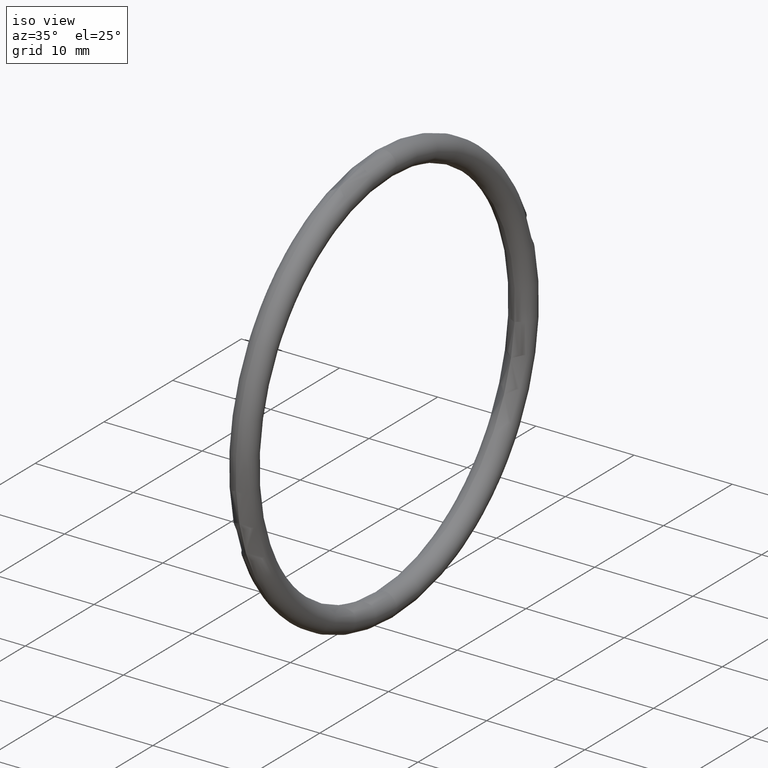
[diagram: clean part render]
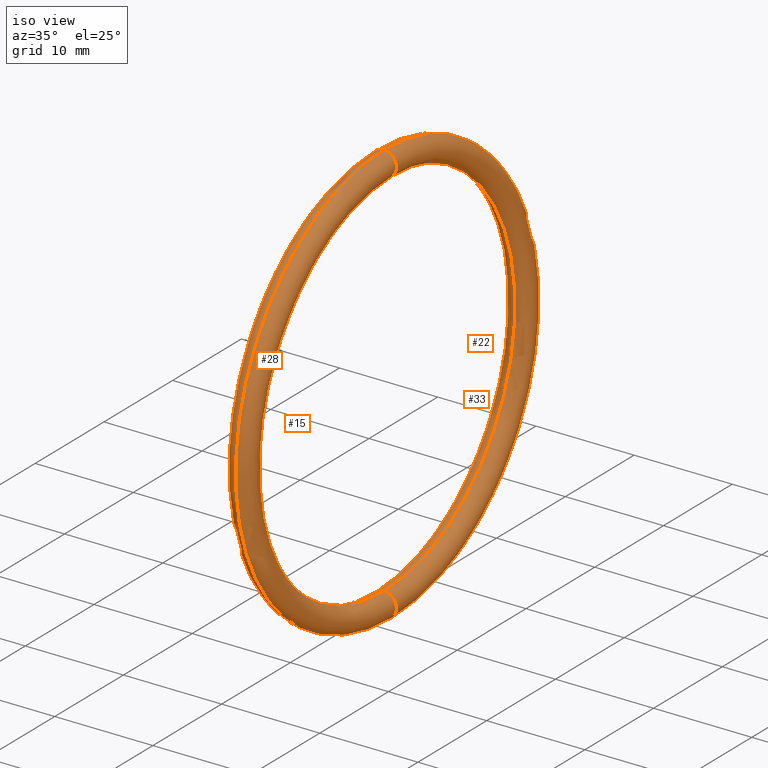
[diagram: same view with one multi-face feature highlighted, each face labeled with its STEP entity id]
A machine part, iso view. The highlighted faces form ONE feature: a constant-radius fillet chain: 4 tangent blend faces with common blend radius 1.27 mm. The faces share edges in the B-rep.
Their STEP definitions:
[1] entity #15 (Torus):
#1 = DIRECTION ( 'NONE',  ( 0.0000000000000000000, 0.0000000000000000000, 1.000000000000000000 ) ) ;
#2 = DIRECTION ( 'NONE',  ( -1.000000000000000000, 0.0000000000000000000, 0.0000000000000000000 ) ) ;
#3 = CIRCLE ( 'NONE', #5, 0.7500000000000001100 ) ;
#4 = CARTESIAN_POINT ( 'NONE',  ( 0.1000000000000000900, 0.0000000000000000000, 0.0000000000000000000 ) ) ;
#5 = AXIS2_PLACEMENT_3D ( 'NONE', #4, #2, #1 ) ;
#7 = ORIENTED_EDGE ( 'NONE', *, *, #18, .T. ) ;
#9 = ORIENTED_EDGE ( 'NONE', *, *, #13, .F. ) ;
#10 = ORIENTED_EDGE ( 'NONE', *, *, #36, .F. ) ;
#11 = EDGE_LOOP ( 'NONE', ( #10, #9, #27, #7 ) ) ;
#13 = EDGE_CURVE ( 'NONE', #29, #30, #48, .T. ) ;
#15 = ADVANCED_FACE ( 'NONE', ( #57 ), #59, .T. ) ;
#18 = EDGE_CURVE ( 'NONE', #42, #35, #55, .T. ) ;
#26 = EDGE_CURVE ( 'NONE', #29, #42, #3, .T. ) ;
#27 = ORIENTED_EDGE ( 'NONE', *, *, #26, .T. ) ;
#29 = VERTEX_POINT ( 'NONE', #133 ) ;
#30 = VERTEX_POINT ( 'NONE', #77 ) ;
#35 = VERTEX_POINT ( 'NONE', #189 ) ;
#36 = EDGE_CURVE ( 'NONE', #30, #35, #101, .T. ) ;
#42 = VERTEX_POINT ( 'NONE', #81 ) ;
#44 = DIRECTION ( 'NONE',  ( 0.0000000000000000000, -1.224646799147354700E-016, 1.000000000000000000 ) ) ;
#45 = DIRECTION ( 'NONE',  ( 0.0000000000000000000, 1.000000000000000000, 1.224646799147353200E-016 ) ) ;
#46 = CARTESIAN_POINT ( 'NONE',  ( 0.1000000000000000900, 9.797174393178826200E-017, -0.8000000000000000400 ) ) ;
#47 = AXIS2_PLACEMENT_3D ( 'NONE', #46, #45, #44 ) ;
#48 = CIRCLE ( 'NONE', #47, 0.05000000000000001000 ) ;
#49 = DIRECTION ( 'NONE',  ( -1.000000000000000000, 0.0000000000000000000, 0.0000000000000000000 ) ) ;
#50 = CARTESIAN_POINT ( 'NONE',  ( 0.1000000000000000900, 0.0000000000000000000, 0.0000000000000000000 ) ) ;
#51 = DIRECTION ( 'NONE',  ( 0.0000000000000000000, 0.0000000000000000000, -1.000000000000000000 ) ) ;
#52 = DIRECTION ( 'NONE',  ( 0.0000000000000000000, -1.000000000000000000, 0.0000000000000000000 ) ) ;
#53 = CARTESIAN_POINT ( 'NONE',  ( 0.1000000000000000900, 0.0000000000000000000, 0.8000000000000000400 ) ) ;
#54 = AXIS2_PLACEMENT_3D ( 'NONE', #53, #52, #51 ) ;
#55 = CIRCLE ( 'NONE', #54, 0.05000000000000001000 ) ;
#57 = FACE_OUTER_BOUND ( 'NONE', #11, .T. ) ;
#58 = DIRECTION ( 'NONE',  ( 0.0000000000000000000, 0.0000000000000000000, 1.000000000000000000 ) ) ;
#59 = TOROIDAL_SURFACE ( 'NONE', #70, 0.8000000000000000400, 0.05000000000000002400 ) ;
#70 = AXIS2_PLACEMENT_3D ( 'NONE', #50, #49, #58 ) ;
#77 = CARTESIAN_POINT ( 'NONE',  ( 0.1000000000000000900, 1.040949779275250400E-016, -0.8500000000000000900 ) ) ;
#81 = CARTESIAN_POINT ( 'NONE',  ( 0.1000000000000000900, 0.0000000000000000000, 0.7500000000000001100 ) ) ;
#98 = DIRECTION ( 'NONE',  ( -1.000000000000000000, 0.0000000000000000000, 0.0000000000000000000 ) ) ;
#99 = CARTESIAN_POINT ( 'NONE',  ( 0.1000000000000000900, 0.0000000000000000000, 0.0000000000000000000 ) ) ;
#100 = AXIS2_PLACEMENT_3D ( 'NONE', #99, #98, #108 ) ;
#101 = CIRCLE ( 'NONE', #100, 0.8500000000000000900 ) ;
#108 = DIRECTION ( 'NONE',  ( 0.0000000000000000000, 0.0000000000000000000, 1.000000000000000000 ) ) ;
#133 = CARTESIAN_POINT ( 'NONE',  ( 0.1000000000000000900, 9.184850993605148400E-017, -0.7500000000000001100 ) ) ;
#189 = CARTESIAN_POINT ( 'NONE',  ( 0.1000000000000000900, 0.0000000000000000000, 0.8500000000000000900 ) ) ;
[2] entity #22 (Torus):
#12 = ORIENTED_EDGE ( 'NONE', *, *, #13, .T. ) ;
#13 = EDGE_CURVE ( 'NONE', #29, #30, #48, .T. ) ;
#16 = ORIENTED_EDGE ( 'NONE', *, *, #40, .T. ) ;
#17 = ORIENTED_EDGE ( 'NONE', *, *, #18, .F. ) ;
#18 = EDGE_CURVE ( 'NONE', #42, #35, #55, .T. ) ;
#19 = ORIENTED_EDGE ( 'NONE', *, *, #21, .F. ) ;
#21 = EDGE_CURVE ( 'NONE', #35, #30, #68, .T. ) ;
#22 = ADVANCED_FACE ( 'NONE', ( #69 ), #63, .T. ) ;
#29 = VERTEX_POINT ( 'NONE', #133 ) ;
#30 = VERTEX_POINT ( 'NONE', #77 ) ;
#35 = VERTEX_POINT ( 'NONE', #189 ) ;
#38 = EDGE_LOOP ( 'NONE', ( #19, #17, #16, #12 ) ) ;
#40 = EDGE_CURVE ( 'NONE', #42, #29, #181, .T. ) ;
#42 = VERTEX_POINT ( 'NONE', #81 ) ;
#44 = DIRECTION ( 'NONE',  ( 0.0000000000000000000, -1.224646799147354700E-016, 1.000000000000000000 ) ) ;
#45 = DIRECTION ( 'NONE',  ( 0.0000000000000000000, 1.000000000000000000, 1.224646799147353200E-016 ) ) ;
#46 = CARTESIAN_POINT ( 'NONE',  ( 0.1000000000000000900, 9.797174393178826200E-017, -0.8000000000000000400 ) ) ;
#47 = AXIS2_PLACEMENT_3D ( 'NONE', #46, #45, #44 ) ;
#48 = CIRCLE ( 'NONE', #47, 0.05000000000000001000 ) ;
#51 = DIRECTION ( 'NONE',  ( 0.0000000000000000000, 0.0000000000000000000, -1.000000000000000000 ) ) ;
#52 = DIRECTION ( 'NONE',  ( 0.0000000000000000000, -1.000000000000000000, 0.0000000000000000000 ) ) ;
#53 = CARTESIAN_POINT ( 'NONE',  ( 0.1000000000000000900, 0.0000000000000000000, 0.8000000000000000400 ) ) ;
#54 = AXIS2_PLACEMENT_3D ( 'NONE', #53, #52, #51 ) ;
#55 = CIRCLE ( 'NONE', #54, 0.05000000000000001000 ) ;
#56 = CARTESIAN_POINT ( 'NONE',  ( 0.1000000000000000900, 0.0000000000000000000, 0.0000000000000000000 ) ) ;
#60 = DIRECTION ( 'NONE',  ( 0.0000000000000000000, 0.0000000000000000000, 1.000000000000000000 ) ) ;
#61 = DIRECTION ( 'NONE',  ( -1.000000000000000000, 0.0000000000000000000, 0.0000000000000000000 ) ) ;
#62 = AXIS2_PLACEMENT_3D ( 'NONE', #64, #61, #60 ) ;
#63 = TOROIDAL_SURFACE ( 'NONE', #62, 0.8000000000000000400, 0.05000000000000002400 ) ;
#64 = CARTESIAN_POINT ( 'NONE',  ( 0.1000000000000000900, 0.0000000000000000000, 0.0000000000000000000 ) ) ;
#65 = DIRECTION ( 'NONE',  ( 0.0000000000000000000, 0.0000000000000000000, 1.000000000000000000 ) ) ;
#66 = DIRECTION ( 'NONE',  ( -1.000000000000000000, 0.0000000000000000000, 0.0000000000000000000 ) ) ;
#67 = AXIS2_PLACEMENT_3D ( 'NONE', #56, #66, #65 ) ;
#68 = CIRCLE ( 'NONE', #67, 0.8500000000000000900 ) ;
#69 = FACE_OUTER_BOUND ( 'NONE', #38, .T. ) ;
#77 = CARTESIAN_POINT ( 'NONE',  ( 0.1000000000000000900, 1.040949779275250400E-016, -0.8500000000000000900 ) ) ;
#81 = CARTESIAN_POINT ( 'NONE',  ( 0.1000000000000000900, 0.0000000000000000000, 0.7500000000000001100 ) ) ;
#102 = CARTESIAN_POINT ( 'NONE',  ( 0.1000000000000000900, 0.0000000000000000000, 0.0000000000000000000 ) ) ;
#133 = CARTESIAN_POINT ( 'NONE',  ( 0.1000000000000000900, 9.184850993605148400E-017, -0.7500000000000001100 ) ) ;
#178 = DIRECTION ( 'NONE',  ( 0.0000000000000000000, 0.0000000000000000000, 1.000000000000000000 ) ) ;
#179 = DIRECTION ( 'NONE',  ( -1.000000000000000000, 0.0000000000000000000, 0.0000000000000000000 ) ) ;
#180 = AXIS2_PLACEMENT_3D ( 'NONE', #102, #179, #178 ) ;
#181 = CIRCLE ( 'NONE', #180, 0.7500000000000001100 ) ;
#189 = CARTESIAN_POINT ( 'NONE',  ( 0.1000000000000000900, 0.0000000000000000000, 0.8500000000000000900 ) ) ;
[3] entity #33 (Torus):
#20 = ORIENTED_EDGE ( 'NONE', *, *, #31, .T. ) ;
#21 = EDGE_CURVE ( 'NONE', #35, #30, #68, .T. ) ;
#23 = ORIENTED_EDGE ( 'NONE', *, *, #21, .T. ) ;
#24 = ORIENTED_EDGE ( 'NONE', *, *, #34, .F. ) ;
#29 = VERTEX_POINT ( 'NONE', #133 ) ;
#30 = VERTEX_POINT ( 'NONE', #77 ) ;
#31 = EDGE_CURVE ( 'NONE', #30, #29, #97, .T. ) ;
#32 = EDGE_LOOP ( 'NONE', ( #24, #23, #20, #39 ) ) ;
#33 = ADVANCED_FACE ( 'NONE', ( #95 ), #71, .T. ) ;
#34 = EDGE_CURVE ( 'NONE', #35, #42, #188, .T. ) ;
#35 = VERTEX_POINT ( 'NONE', #189 ) ;
#39 = ORIENTED_EDGE ( 'NONE', *, *, #40, .F. ) ;
#40 = EDGE_CURVE ( 'NONE', #42, #29, #181, .T. ) ;
#42 = VERTEX_POINT ( 'NONE', #81 ) ;
#56 = CARTESIAN_POINT ( 'NONE',  ( 0.1000000000000000900, 0.0000000000000000000, 0.0000000000000000000 ) ) ;
#65 = DIRECTION ( 'NONE',  ( 0.0000000000000000000, 0.0000000000000000000, 1.000000000000000000 ) ) ;
#66 = DIRECTION ( 'NONE',  ( -1.000000000000000000, 0.0000000000000000000, 0.0000000000000000000 ) ) ;
#67 = AXIS2_PLACEMENT_3D ( 'NONE', #56, #66, #65 ) ;
#68 = CIRCLE ( 'NONE', #67, 0.8500000000000000900 ) ;
#71 = TOROIDAL_SURFACE ( 'NONE', #138, 0.8000000000000000400, 0.05000000000000002400 ) ;
#72 = DIRECTION ( 'NONE',  ( -1.000000000000000000, 0.0000000000000000000, 0.0000000000000000000 ) ) ;
#73 = CARTESIAN_POINT ( 'NONE',  ( 0.1000000000000000900, 0.0000000000000000000, 0.0000000000000000000 ) ) ;
#74 = DIRECTION ( 'NONE',  ( 0.0000000000000000000, -1.224646799147354700E-016, 1.000000000000000000 ) ) ;
#75 = DIRECTION ( 'NONE',  ( 0.0000000000000000000, 1.000000000000000000, 1.224646799147353200E-016 ) ) ;
#77 = CARTESIAN_POINT ( 'NONE',  ( 0.1000000000000000900, 1.040949779275250400E-016, -0.8500000000000000900 ) ) ;
#81 = CARTESIAN_POINT ( 'NONE',  ( 0.1000000000000000900, 0.0000000000000000000, 0.7500000000000001100 ) ) ;
#95 = FACE_OUTER_BOUND ( 'NONE', #32, .T. ) ;
#96 = AXIS2_PLACEMENT_3D ( 'NONE', #104, #75, #74 ) ;
#97 = CIRCLE ( 'NONE', #96, 0.05000000000000001000 ) ;
#102 = CARTESIAN_POINT ( 'NONE',  ( 0.1000000000000000900, 0.0000000000000000000, 0.0000000000000000000 ) ) ;
#104 = CARTESIAN_POINT ( 'NONE',  ( 0.1000000000000000900, 9.797174393178826200E-017, -0.8000000000000000400 ) ) ;
#133 = CARTESIAN_POINT ( 'NONE',  ( 0.1000000000000000900, 9.184850993605148400E-017, -0.7500000000000001100 ) ) ;
#134 = DIRECTION ( 'NONE',  ( 0.0000000000000000000, 0.0000000000000000000, -1.000000000000000000 ) ) ;
#135 = DIRECTION ( 'NONE',  ( 0.0000000000000000000, -1.000000000000000000, 0.0000000000000000000 ) ) ;
#136 = CARTESIAN_POINT ( 'NONE',  ( 0.1000000000000000900, 0.0000000000000000000, 0.8000000000000000400 ) ) ;
#138 = AXIS2_PLACEMENT_3D ( 'NONE', #73, #72, #139 ) ;
#139 = DIRECTION ( 'NONE',  ( 0.0000000000000000000, 0.0000000000000000000, 1.000000000000000000 ) ) ;
#178 = DIRECTION ( 'NONE',  ( 0.0000000000000000000, 0.0000000000000000000, 1.000000000000000000 ) ) ;
#179 = DIRECTION ( 'NONE',  ( -1.000000000000000000, 0.0000000000000000000, 0.0000000000000000000 ) ) ;
#180 = AXIS2_PLACEMENT_3D ( 'NONE', #102, #179, #178 ) ;
#181 = CIRCLE ( 'NONE', #180, 0.7500000000000001100 ) ;
#187 = AXIS2_PLACEMENT_3D ( 'NONE', #136, #135, #134 ) ;
#188 = CIRCLE ( 'NONE', #187, 0.05000000000000001000 ) ;
#189 = CARTESIAN_POINT ( 'NONE',  ( 0.1000000000000000900, 0.0000000000000000000, 0.8500000000000000900 ) ) ;
[4] entity #28 (Torus):
#1 = DIRECTION ( 'NONE',  ( 0.0000000000000000000, 0.0000000000000000000, 1.000000000000000000 ) ) ;
#2 = DIRECTION ( 'NONE',  ( -1.000000000000000000, 0.0000000000000000000, 0.0000000000000000000 ) ) ;
#3 = CIRCLE ( 'NONE', #5, 0.7500000000000001100 ) ;
#4 = CARTESIAN_POINT ( 'NONE',  ( 0.1000000000000000900, 0.0000000000000000000, 0.0000000000000000000 ) ) ;
#5 = AXIS2_PLACEMENT_3D ( 'NONE', #4, #2, #1 ) ;
#14 = ORIENTED_EDGE ( 'NONE', *, *, #31, .F. ) ;
#25 = ORIENTED_EDGE ( 'NONE', *, *, #26, .F. ) ;
#26 = EDGE_CURVE ( 'NONE', #29, #42, #3, .T. ) ;
#28 = ADVANCED_FACE ( 'NONE', ( #116 ), #137, .T. ) ;
#29 = VERTEX_POINT ( 'NONE', #133 ) ;
#30 = VERTEX_POINT ( 'NONE', #77 ) ;
#31 = EDGE_CURVE ( 'NONE', #30, #29, #97, .T. ) ;
#34 = EDGE_CURVE ( 'NONE', #35, #42, #188, .T. ) ;
#35 = VERTEX_POINT ( 'NONE', #189 ) ;
#36 = EDGE_CURVE ( 'NONE', #30, #35, #101, .T. ) ;
#37 = ORIENTED_EDGE ( 'NONE', *, *, #36, .T. ) ;
#41 = ORIENTED_EDGE ( 'NONE', *, *, #34, .T. ) ;
#42 = VERTEX_POINT ( 'NONE', #81 ) ;
#43 = EDGE_LOOP ( 'NONE', ( #14, #37, #41, #25 ) ) ;
#74 = DIRECTION ( 'NONE',  ( 0.0000000000000000000, -1.224646799147354700E-016, 1.000000000000000000 ) ) ;
#75 = DIRECTION ( 'NONE',  ( 0.0000000000000000000, 1.000000000000000000, 1.224646799147353200E-016 ) ) ;
#76 = AXIS2_PLACEMENT_3D ( 'NONE', #112, #192, #103 ) ;
#77 = CARTESIAN_POINT ( 'NONE',  ( 0.1000000000000000900, 1.040949779275250400E-016, -0.8500000000000000900 ) ) ;
#81 = CARTESIAN_POINT ( 'NONE',  ( 0.1000000000000000900, 0.0000000000000000000, 0.7500000000000001100 ) ) ;
#96 = AXIS2_PLACEMENT_3D ( 'NONE', #104, #75, #74 ) ;
#97 = CIRCLE ( 'NONE', #96, 0.05000000000000001000 ) ;
#98 = DIRECTION ( 'NONE',  ( -1.000000000000000000, 0.0000000000000000000, 0.0000000000000000000 ) ) ;
#99 = CARTESIAN_POINT ( 'NONE',  ( 0.1000000000000000900, 0.0000000000000000000, 0.0000000000000000000 ) ) ;
#100 = AXIS2_PLACEMENT_3D ( 'NONE', #99, #98, #108 ) ;
#101 = CIRCLE ( 'NONE', #100, 0.8500000000000000900 ) ;
#103 = DIRECTION ( 'NONE',  ( 0.0000000000000000000, 0.0000000000000000000, 1.000000000000000000 ) ) ;
#104 = CARTESIAN_POINT ( 'NONE',  ( 0.1000000000000000900, 9.797174393178826200E-017, -0.8000000000000000400 ) ) ;
#108 = DIRECTION ( 'NONE',  ( 0.0000000000000000000, 0.0000000000000000000, 1.000000000000000000 ) ) ;
#112 = CARTESIAN_POINT ( 'NONE',  ( 0.1000000000000000900, 0.0000000000000000000, 0.0000000000000000000 ) ) ;
#116 = FACE_OUTER_BOUND ( 'NONE', #43, .T. ) ;
#133 = CARTESIAN_POINT ( 'NONE',  ( 0.1000000000000000900, 9.184850993605148400E-017, -0.7500000000000001100 ) ) ;
#134 = DIRECTION ( 'NONE',  ( 0.0000000000000000000, 0.0000000000000000000, -1.000000000000000000 ) ) ;
#135 = DIRECTION ( 'NONE',  ( 0.0000000000000000000, -1.000000000000000000, 0.0000000000000000000 ) ) ;
#136 = CARTESIAN_POINT ( 'NONE',  ( 0.1000000000000000900, 0.0000000000000000000, 0.8000000000000000400 ) ) ;
#137 = TOROIDAL_SURFACE ( 'NONE', #76, 0.8000000000000000400, 0.05000000000000002400 ) ;
#187 = AXIS2_PLACEMENT_3D ( 'NONE', #136, #135, #134 ) ;
#188 = CIRCLE ( 'NONE', #187, 0.05000000000000001000 ) ;
#189 = CARTESIAN_POINT ( 'NONE',  ( 0.1000000000000000900, 0.0000000000000000000, 0.8500000000000000900 ) ) ;
#192 = DIRECTION ( 'NONE',  ( -1.000000000000000000, 0.0000000000000000000, 0.0000000000000000000 ) ) ;